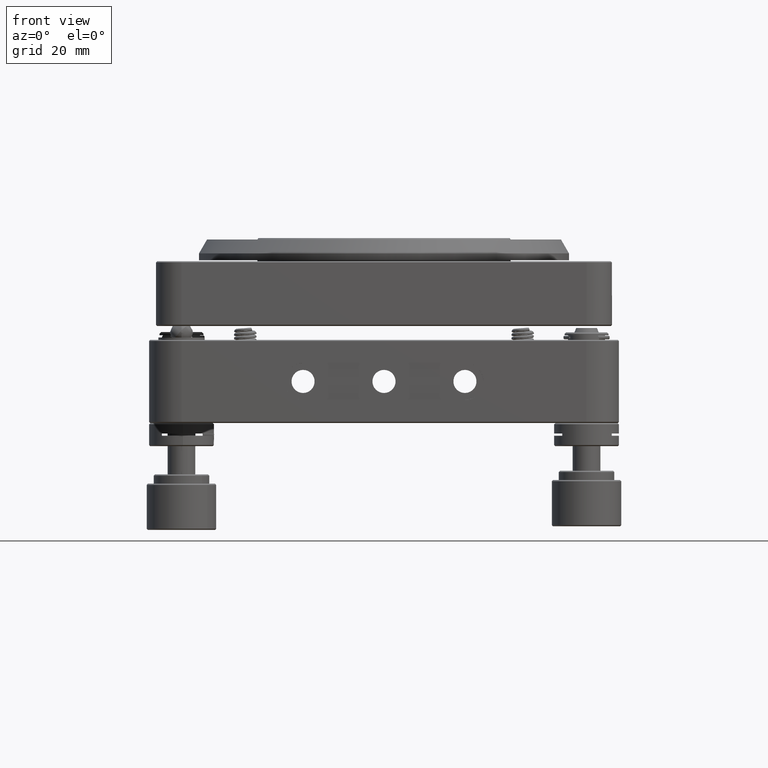
[diagram: clean part render]
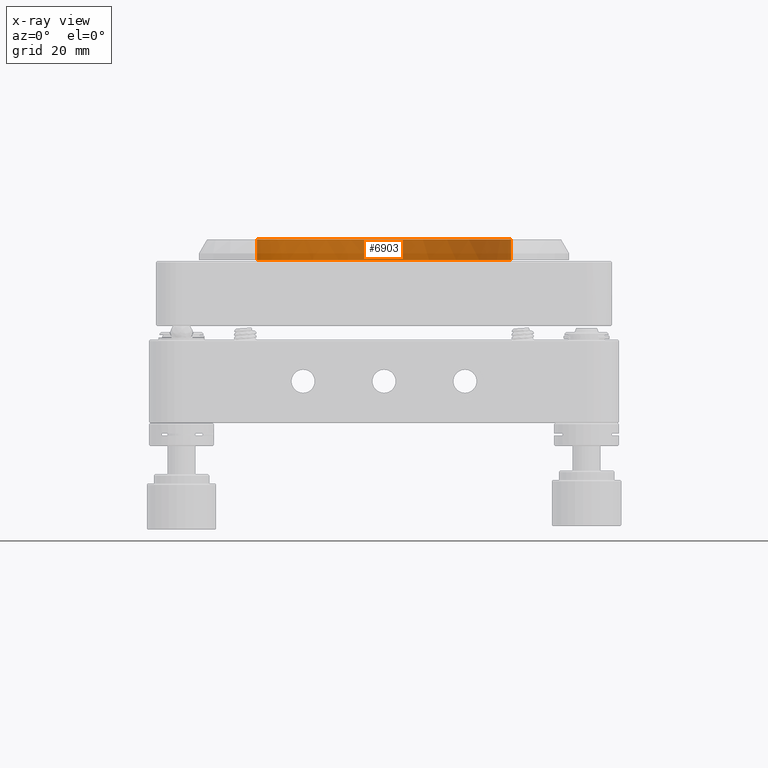
[diagram: x-ray — body ghosted, one internal face saturated and labeled with its STEP entity id]
A machine part, front view, then the same camera in x-ray: the body is ghosted and one INTERNAL B-rep face — a face not visible from any outside direction — is saturated and labeled: STEP entity #6903.
In plain terms, the highlighted face is a freeform B-spline surface patch.
Its self-contained STEP definition (entity closure, byte-faithful):
#308 = CARTESIAN_POINT ( 'NONE',  ( 27.49999999999968026, 3.446105993486013016E-13, 31.14726781186548266 ) ) ;
#688 = CARTESIAN_POINT ( 'NONE',  ( -3.236523222652222688E-13, 27.50000000000034106, 31.14726781186548266 ) ) ;
#948 = CARTESIAN_POINT ( 'NONE',  ( -27.50000000000031619, 3.361911526044632413E-13, 30.69606781186547906 ) ) ;
#2877 = CARTESIAN_POINT ( 'NONE',  ( -27.50000000000031974, 3.378750419532908432E-13, 25.74486781186547546 ) ) ;
#3172 = LINE ( 'NONE', #24455, #5252 ) ;
#3455 = CARTESIAN_POINT ( 'NONE',  ( -3.202845435675670649E-13, -27.49999999999965894, 31.14726781186548266 ) ) ;
#3640 = CARTESIAN_POINT ( 'NONE',  ( -27.50000000000031974, 27.50000000000033751, 31.14726781186548266 ) ) ;
#5239 = CIRCLE ( 'NONE', #15923, 27.50000000000000355 ) ;
#5252 = VECTOR ( 'NONE', #12042, 1000.000000000000000 ) ;
#5611 = ORIENTED_EDGE ( 'NONE', *, *, #37684, .F. ) ;
#6214 = CARTESIAN_POINT ( 'NONE',  ( -27.50000000000031974, 27.50000000000033751, 25.74486781186547546 ) ) ;
#6680 = ORIENTED_EDGE ( 'NONE', *, *, #22784, .F. ) ;
#6903 = ADVANCED_FACE ( 'NONE', ( #15067 ), #34382, .T. ) ;
#9918 = CARTESIAN_POINT ( 'NONE',  ( 27.49999999999967670, 3.429267099997737501E-13, 30.69606781186547906 ) ) ;
#11646 = LINE ( 'NONE', #38455, #22911 ) ;
#11779 = DIRECTION ( 'NONE',  ( -1.160418634166471502E-15, -1.000000000000000000, 1.261617073437677752E-16 ) ) ;
#12042 = DIRECTION ( 'NONE',  ( -0.000000000000000000, -0.000000000000000000, 1.000000000000000000 ) ) ;
#12173 = ORIENTED_EDGE ( 'NONE', *, *, #26049, .T. ) ;
#12328 = CARTESIAN_POINT ( 'NONE',  ( 27.49999999999967315, 27.50000000000034106, 31.14726781186548266 ) ) ;
#12509 = CARTESIAN_POINT ( 'NONE',  ( 27.49999999999967315, 27.50000000000034106, 25.74486781186547546 ) ) ;
#12595 = EDGE_CURVE ( 'NONE', #23017, #15014, #3172, .T. ) ;
#12667 =( BOUNDED_CURVE ( )  B_SPLINE_CURVE ( 2, ( #948, #19448, #13146, #34245, #25186 ),
 .UNSPECIFIED., .F., .F. ) 
 B_SPLINE_CURVE_WITH_KNOTS ( ( 3, 2, 3 ),
 ( 1.062224741880378223E-18, 0.04297996196129537372, 0.08595992392259074744 ),
 .UNSPECIFIED. ) 
 CURVE ( )  GEOMETRIC_REPRESENTATION_ITEM ( )  RATIONAL_B_SPLINE_CURVE ( ( 0.9999999999999978906, 0.7071067811865496822, 1.000000000000000000, 0.7071067811865496822, 0.9999999999999978906 ) ) 
 REPRESENTATION_ITEM ( '' )  );
#13146 = CARTESIAN_POINT ( 'NONE',  ( -3.236523222652222183E-13, 27.50000000000033751, 30.69606781186547906 ) ) ;
#14878 = CARTESIAN_POINT ( 'NONE',  ( -3.202845435675670649E-13, -27.49999999999965894, 25.74486781186547546 ) ) ;
#15014 = VERTEX_POINT ( 'NONE', #9918 ) ;
#15067 = FACE_OUTER_BOUND ( 'NONE', #38057, .T. ) ;
#15923 = AXIS2_PLACEMENT_3D ( 'NONE', #33459, #18266, #11779 ) ;
#17714 = ORIENTED_EDGE ( 'NONE', *, *, #12595, .T. ) ;
#18032 = CARTESIAN_POINT ( 'NONE',  ( 27.49999999999968381, -27.49999999999965183, 31.14726781186548266 ) ) ;
#18266 = DIRECTION ( 'NONE',  ( 1.261617073437678492E-16, 1.261617073437678738E-16, 1.000000000000000000 ) ) ;
#18614 = CARTESIAN_POINT ( 'NONE',  ( -27.50000000000030909, -27.49999999999966249, 25.74486781186547546 ) ) ;
#19448 = CARTESIAN_POINT ( 'NONE',  ( -27.50000000000003908, 27.50000000000033751, 30.69606781186547551 ) ) ;
#20418 = VERTEX_POINT ( 'NONE', #25152 ) ;
#21390 = CARTESIAN_POINT ( 'NONE',  ( 27.49999999999968381, -27.49999999999965183, 25.74486781186547546 ) ) ;
#22784 = EDGE_CURVE ( 'NONE', #23017, #20418, #5239, .T. ) ;
#22911 = VECTOR ( 'NONE', #38071, 1000.000000000000000 ) ;
#23017 = VERTEX_POINT ( 'NONE', #28429 ) ;
#24455 = CARTESIAN_POINT ( 'NONE',  ( 27.49999999999968026, 3.446105993486013016E-13, 28.44606781186547906 ) ) ;
#25152 = CARTESIAN_POINT ( 'NONE',  ( -27.50000000000031974, 3.378750419532908432E-13, 26.19606781186547195 ) ) ;
#25186 = CARTESIAN_POINT ( 'NONE',  ( 27.49999999999967670, 3.429267099997737501E-13, 30.69606781186547906 ) ) ;
#26049 = EDGE_CURVE ( 'NONE', #26468, #20418, #11646, .T. ) ;
#26468 = VERTEX_POINT ( 'NONE', #30510 ) ;
#27295 = CARTESIAN_POINT ( 'NONE',  ( -27.50000000000030909, -27.49999999999966249, 31.14726781186548266 ) ) ;
#27680 = CARTESIAN_POINT ( 'NONE',  ( 27.49999999999968026, 3.446105993486013016E-13, 25.74486781186547546 ) ) ;
#28429 = CARTESIAN_POINT ( 'NONE',  ( 27.49999999999968026, 3.446105993486013016E-13, 26.19606781186547195 ) ) ;
#30062 = CARTESIAN_POINT ( 'NONE',  ( -3.202845435675670649E-13, -27.49999999999965894, 25.74486781186547546 ) ) ;
#30256 = CARTESIAN_POINT ( 'NONE',  ( -3.236523222652222688E-13, 27.50000000000034106, 25.74486781186547546 ) ) ;
#30510 = CARTESIAN_POINT ( 'NONE',  ( -27.50000000000031619, 3.361911526044632413E-13, 30.69606781186547906 ) ) ;
#32825 = CARTESIAN_POINT ( 'NONE',  ( -27.50000000000031974, 3.378750419532908432E-13, 31.14726781186548266 ) ) ;
#33225 = CARTESIAN_POINT ( 'NONE',  ( -3.202845435675670649E-13, -27.49999999999965894, 31.14726781186548266 ) ) ;
#33459 = CARTESIAN_POINT ( 'NONE',  ( -3.127979376697425315E-13, 3.441445920503028877E-13, 26.19606781186547551 ) ) ;
#34245 = CARTESIAN_POINT ( 'NONE',  ( 27.49999999999939604, 27.50000000000034461, 30.69606781186547551 ) ) ;
#34382 =( BOUNDED_SURFACE ( )  B_SPLINE_SURFACE ( 1, 2, ( 
 ( #3455, #27295, #32825, #3640, #688, #12328, #308, #18032, #33225 ),
 ( #30062, #18614, #2877, #6214, #30256, #12509, #27680, #21390, #14878 ) ),
 .UNSPECIFIED., .F., .F., .T. ) 
 B_SPLINE_SURFACE_WITH_KNOTS ( ( 2, 2 ),
 ( 3, 2, 2, 2, 3 ),
 ( 0.000000000000000000, 5.402400000000007196 ),
 ( 0.000000000000000000, 1.570796326794896558, 3.141592653589793116, 4.712388980384689674, 6.283185307179586232 ),
 .UNSPECIFIED. ) 
 GEOMETRIC_REPRESENTATION_ITEM ( )  RATIONAL_B_SPLINE_SURFACE ( (
 ( 1.000000000000000000, 0.7071067811865475727, 1.000000000000000000, 0.7071067811865475727, 1.000000000000000000, 0.7071067811865475727, 1.000000000000000000, 0.7071067811865475727, 1.000000000000000000),
 ( 1.000000000000000000, 0.7071067811865475727, 1.000000000000000000, 0.7071067811865475727, 1.000000000000000000, 0.7071067811865475727, 1.000000000000000000, 0.7071067811865475727, 1.000000000000000000) ) ) 
 REPRESENTATION_ITEM ( '' )  SURFACE ( )  );
#37684 = EDGE_CURVE ( 'NONE', #26468, #15014, #12667, .T. ) ;
#38057 = EDGE_LOOP ( 'NONE', ( #5611, #12173, #6680, #17714 ) ) ;
#38071 = DIRECTION ( 'NONE',  ( 0.000000000000000000, 0.000000000000000000, -1.000000000000000000 ) ) ;
#38455 = CARTESIAN_POINT ( 'NONE',  ( -27.50000000000031974, 3.378750419532908432E-13, 28.44606781186547906 ) ) ;